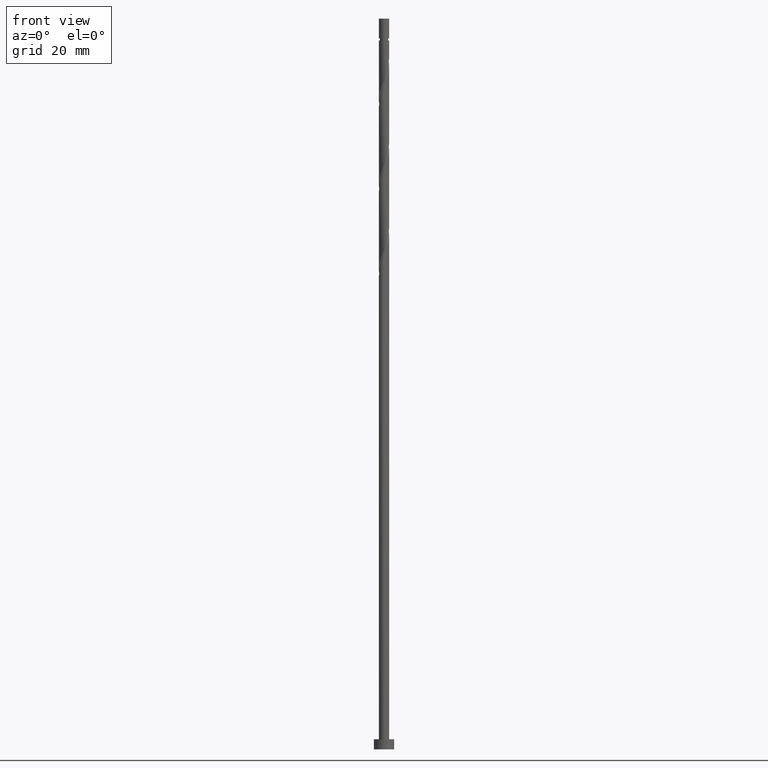
[diagram: clean part render]
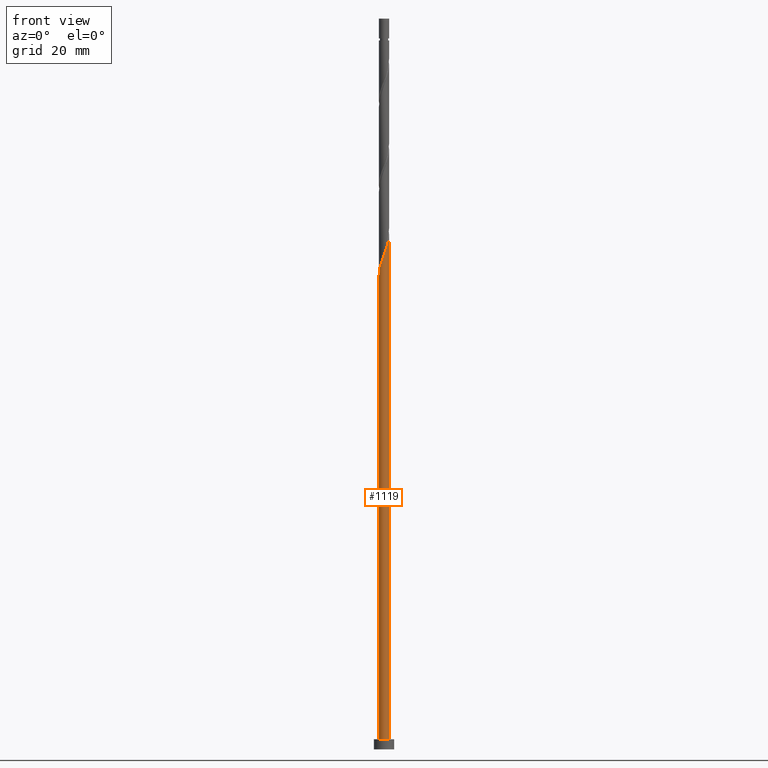
[diagram: same view with one face highlighted and labeled with its STEP entity id]
A machine part, front view. The second image highlights one B-rep face of the part: STEP entity #1119.
In plain terms, the highlighted cylindrical surface (edge-blend (fillet) strip) has radius 1 mm, axis along (-0, -0, -1).
Its self-contained STEP definition (entity closure, byte-faithful):
#52 = CARTESIAN_POINT ( 'NONE',  ( -0.6324182898422984200, -0.7944421381061740339, 95.41371458033049180 ) ) ;
#61 = EDGE_CURVE ( 'NONE', #494, #1167, #213, .T. ) ;
#69 = CARTESIAN_POINT ( 'NONE',  ( 0.7823727769265554910, -0.6228104349834172604, 99.58038124699712057 ) ) ;
#92 = DIRECTION ( 'NONE',  ( -0.000000000000000000, -0.000000000000000000, -1.000000000000000000 ) ) ;
#108 = ORIENTED_EDGE ( 'NONE', *, *, #1019, .F. ) ;
#154 = EDGE_LOOP ( 'NONE', ( #108, #1301, #835, #604 ) ) ;
#213 =( BOUNDED_CURVE ( )  B_SPLINE_CURVE ( 2, ( #1191, #988, #1446, #873, #407, #966, #1107, #52, #294, #513, #864, #879, #391, #519, #1218, #1426, #69, #1441, #300, #1210, #1316 ),
 .UNSPECIFIED., .F., .T. ) 
 B_SPLINE_CURVE_WITH_KNOTS ( ( 3, 2, 2, 2, 2, 2, 2, 2, 2, 2, 3 ),
 ( 0.05452480538552887529, 0.05555555555555558023, 0.06944444444444441977, 0.08333333333333337034, 0.09722222222222220989, 0.1111111111111111605, 0.1250000000000000000, 0.1388888888888888395, 0.1527777777777777901, 0.1666666666666666297, 0.1795248053855292569 ),
 .UNSPECIFIED. ) 
 CURVE ( )  GEOMETRIC_REPRESENTATION_ITEM ( )  RATIONAL_B_SPLINE_CURVE ( ( 0.9071930855141370209, 0.9080659294509847435, 0.9090909090909250478, 0.8952797754656593998, 0.9090909090909250478, 0.8952797754656593998, 0.9090909090909250478, 0.8952797754656593998, 0.9090909090909250478, 0.8952797754656593998, 0.9090909090909250478, 0.8952797754656593998, 0.9090909090909250478, 0.8952797754656593998, 0.9090909090909250478, 0.8952797754656593998, 0.9090909090909250478, 0.8952797754656593998, 0.9090909090909250478, 0.8963047551055993711, 0.9071930855141376870 ) ) 
 REPRESENTATION_ITEM ( '' )  );
#223 = EDGE_CURVE ( 'NONE', #838, #594, #601, .T. ) ;
#234 = CARTESIAN_POINT ( 'NONE',  ( 0.000000000000000000, 0.000000000000000000, 143.6999999999999886 ) ) ;
#294 = CARTESIAN_POINT ( 'NONE',  ( -0.4774909380590630081, -0.8786366735297811426, 95.87667754329343950 ) ) ;
#300 = CARTESIAN_POINT ( 'NONE',  ( 0.9482036394194141016, -0.3176631206038574295, 100.5063071729230586 ) ) ;
#391 = CARTESIAN_POINT ( 'NONE',  ( 0.1989974874213269185, -0.9800000000000010925, 97.72852939514530135 ) ) ;
#407 = CARTESIAN_POINT ( 'NONE',  ( -0.9305560469009532820, -0.3661494825560641098, 94.02482569144160607 ) ) ;
#463 = DIRECTION ( 'NONE',  ( -0.000000000000000000, -0.000000000000000000, -1.000000000000000000 ) ) ;
#494 = VERTEX_POINT ( 'NONE', #658 ) ;
#513 = CARTESIAN_POINT ( 'NONE',  ( -0.3225635862758270966, -0.9628312089533884732, 96.33964050625637299 ) ) ;
#519 = CARTESIAN_POINT ( 'NONE',  ( 0.3717979285156225999, -0.9449113738744279178, 98.19149235810822063 ) ) ;
#521 = AXIS2_PLACEMENT_3D ( 'NONE', #234, #92, #903 ) ;
#594 = VERTEX_POINT ( 'NONE', #1007 ) ;
#601 = CIRCLE ( 'NONE', #1177, 1.000000000000000000 ) ;
#604 = ORIENTED_EDGE ( 'NONE', *, *, #223, .T. ) ;
#646 = VECTOR ( 'NONE', #463, 1000.000000000000000 ) ;
#658 = CARTESIAN_POINT ( 'NONE',  ( -1.000000000000001332, 5.844870661472089523E-16, 93.03100784015649083 ) ) ;
#661 = CARTESIAN_POINT ( 'NONE',  ( -1.000000000000000000, 0.000000000000000000, 2.000000000000000000 ) ) ;
#668 = FACE_OUTER_BOUND ( 'NONE', #154, .T. ) ;
#677 = LINE ( 'NONE', #1124, #646 ) ;
#684 = DIRECTION ( 'NONE',  ( 1.000000000000000000, 0.000000000000000000, 0.000000000000000000 ) ) ;
#694 = CARTESIAN_POINT ( 'NONE',  ( 0.000000000000000000, 0.000000000000000000, 2.000000000000000000 ) ) ;
#806 = CYLINDRICAL_SURFACE ( 'NONE', #521, 1.000000000000000000 ) ;
#835 = ORIENTED_EDGE ( 'NONE', *, *, #1220, .T. ) ;
#838 = VERTEX_POINT ( 'NONE', #661 ) ;
#864 = CARTESIAN_POINT ( 'NONE',  ( -0.1481832699743982351, -0.9889599175394812036, 96.80260346921936332 ) ) ;
#873 = CARTESIAN_POINT ( 'NONE',  ( -0.9951180796480310065, -0.2020673444260142060, 93.56186272847861574 ) ) ;
#879 = CARTESIAN_POINT ( 'NONE',  ( 0.02619704632703082417, -1.015088626125574045, 97.26556643218231102 ) ) ;
#903 = DIRECTION ( 'NONE',  ( -1.000000000000000000, 0.000000000000000000, 0.000000000000000000 ) ) ;
#966 = CARTESIAN_POINT ( 'NONE',  ( -0.8659940141538758906, -0.5302316206861137360, 94.48778865440456798 ) ) ;
#988 = CARTESIAN_POINT ( 'NONE',  ( -1.000000000000001332, -0.01290167433202121100, 93.06502521408883410 ) ) ;
#1007 = CARTESIAN_POINT ( 'NONE',  ( 1.000000000000000000, 1.224646799147353207E-16, 2.000000000000000000 ) ) ;
#1019 = EDGE_CURVE ( 'NONE', #1167, #594, #677, .T. ) ;
#1058 = CARTESIAN_POINT ( 'NONE',  ( 1.000000000000001332, -6.050281451491875313E-16, 101.3643411734898621 ) ) ;
#1070 = CARTESIAN_POINT ( 'NONE',  ( -1.000000000000000000, 0.000000000000000000, 143.6999999999999886 ) ) ;
#1107 = CARTESIAN_POINT ( 'NONE',  ( -0.7492061519980871553, -0.6623368793961438294, 94.95075161736750147 ) ) ;
#1119 = ADVANCED_FACE ( 'NONE', ( #668 ), #806, .T. ) ;
#1124 = CARTESIAN_POINT ( 'NONE',  ( 1.000000000000000000, 1.224646799147353207E-16, 143.6999999999999886 ) ) ;
#1132 = DIRECTION ( 'NONE',  ( 0.000000000000000000, 0.000000000000000000, 1.000000000000000000 ) ) ;
#1167 = VERTEX_POINT ( 'NONE', #1058 ) ;
#1177 = AXIS2_PLACEMENT_3D ( 'NONE', #694, #1132, #684 ) ;
#1191 = CARTESIAN_POINT ( 'NONE',  ( -1.000000000000001332, 5.844870661472089523E-16, 93.03100784015649083 ) ) ;
#1210 = CARTESIAN_POINT ( 'NONE',  ( 1.000000000000002442, -0.1630543718204524595, 100.9344216611242473 ) ) ;
#1218 = CARTESIAN_POINT ( 'NONE',  ( 0.5221762109439130883, -0.8528376192009009538, 98.65445532107121096 ) ) ;
#1220 = EDGE_CURVE ( 'NONE', #494, #838, #1407, .T. ) ;
#1297 = DIRECTION ( 'NONE',  ( -0.000000000000000000, -0.000000000000000000, -1.000000000000000000 ) ) ;
#1301 = ORIENTED_EDGE ( 'NONE', *, *, #61, .F. ) ;
#1316 = CARTESIAN_POINT ( 'NONE',  ( 1.000000000000001332, -6.050281451491875313E-16, 101.3643411734898621 ) ) ;
#1336 = VECTOR ( 'NONE', #1297, 1000.000000000000000 ) ;
#1407 = LINE ( 'NONE', #1070, #1336 ) ;
#1426 = CARTESIAN_POINT ( 'NONE',  ( 0.6725544933722034102, -0.7607638645273745448, 99.11741828403420129 ) ) ;
#1441 = CARTESIAN_POINT ( 'NONE',  ( 0.8921910604809071277, -0.4848570054394605866, 100.0433442099600683 ) ) ;
#1446 = CARTESIAN_POINT ( 'NONE',  ( -0.9996671490029760410, -0.02579905432888023736, 93.09889976551563961 ) ) ;